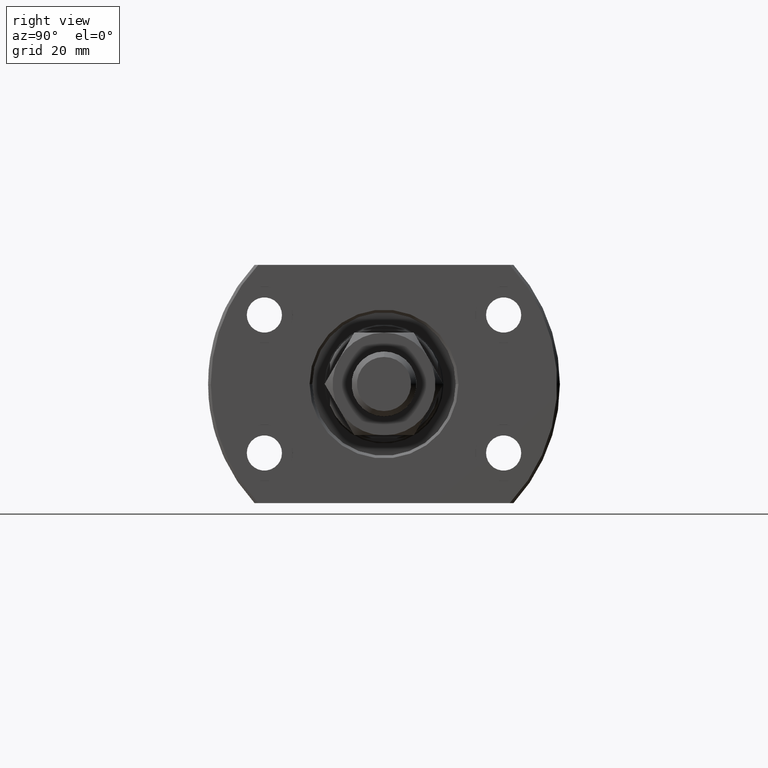
[diagram: clean part render]
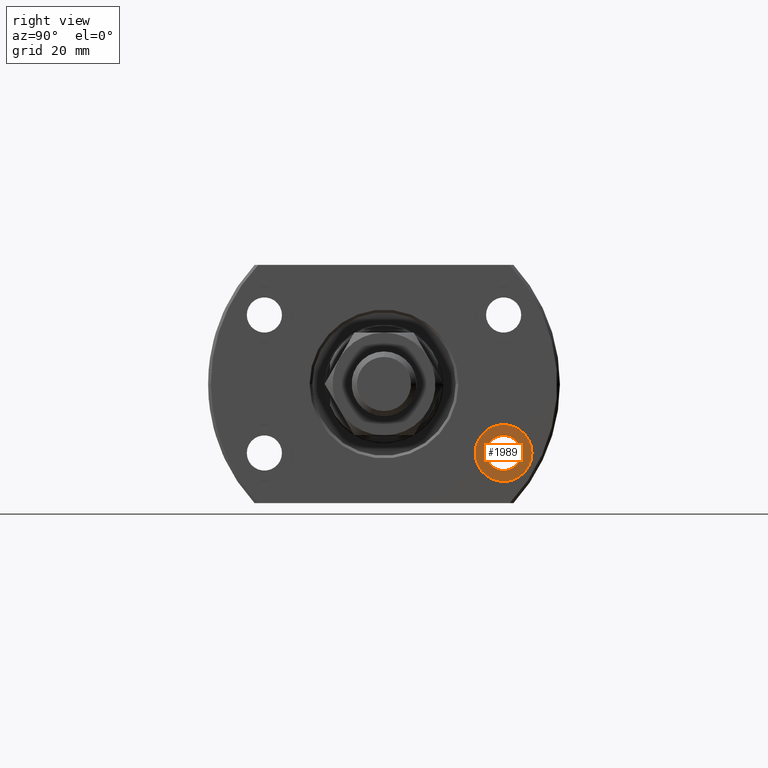
[diagram: same view with one face highlighted and labeled with its STEP entity id]
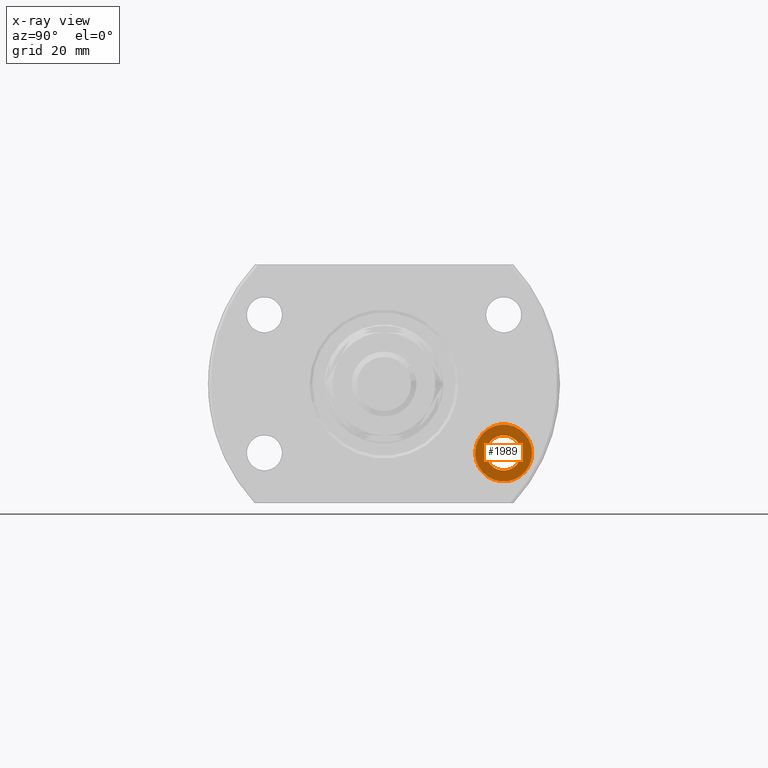
[diagram: x-ray of the same camera — body ghosted, the highlighted face saturated]
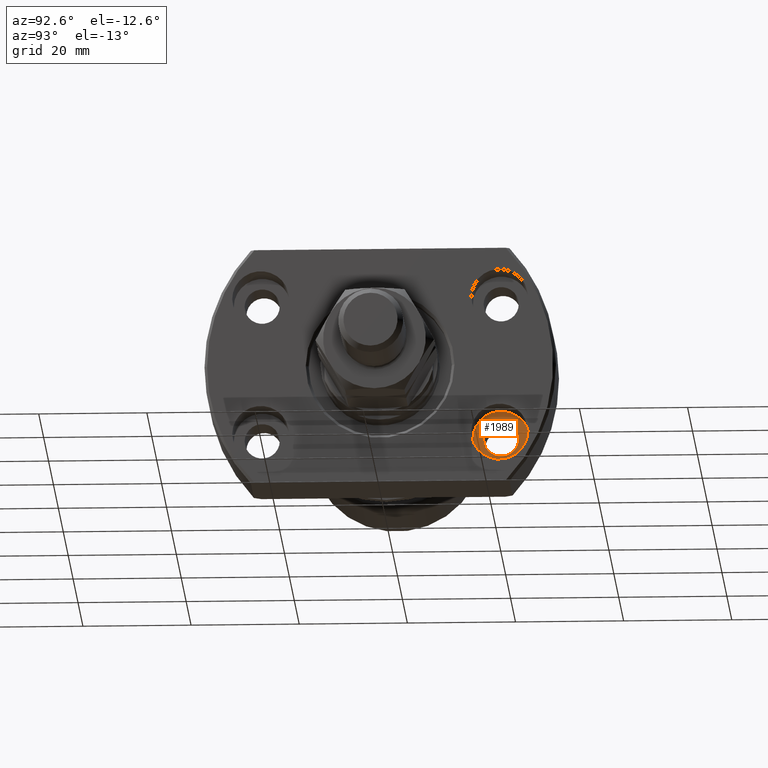
[diagram: same view with one face highlighted and labeled with its STEP entity id]
A machine part, right view. The second image highlights one B-rep face of the part: STEP entity #1989.
The next image is the same camera in x-ray: the body ghosted, the highlighted face saturated — about 0% of this face is hidden behind the body in this view.
A second angle (auxiliary view) of the same face is appended — the face is thin or edge-on in the first view.
In plain terms, the highlighted planar face has unit normal (1, -0, -0).
Its self-contained STEP definition (entity closure, byte-faithful):
#72 = VERTEX_POINT ( 'NONE', #3354 ) ;
#106 = CARTESIAN_POINT ( 'NONE',  ( 21.00000000000049027, 16.84999999999939746, -12.75000000000000178 ) ) ;
#198 = CARTESIAN_POINT ( 'NONE',  ( 21.00000000000064304, 22.09999999999939746, -12.75000000000000178 ) ) ;
#227 = DIRECTION ( 'NONE',  ( 2.882309775469156694E-14, 1.000000000000000000, 0.000000000000000000 ) ) ;
#276 = AXIS2_PLACEMENT_3D ( 'NONE', #4468, #1057, #1109 ) ;
#330 = EDGE_CURVE ( 'NONE', #3328, #4544, #3846, .T. ) ;
#506 = EDGE_CURVE ( 'NONE', #4544, #3328, #3538, .T. ) ;
#637 = CARTESIAN_POINT ( 'NONE',  ( 21.00000000000055067, 18.84999999999939746, -12.75000000000000178 ) ) ;
#1057 = DIRECTION ( 'NONE',  ( 1.000000000000000000, -2.887798767815668620E-14, -6.310887241768094443E-30 ) ) ;
#1109 = DIRECTION ( 'NONE',  ( 2.882309775469156694E-14, 1.000000000000000000, 0.000000000000000000 ) ) ;
#1336 = DIRECTION ( 'NONE',  ( 1.000000000000000000, -2.887798767815668620E-14, -6.310887241768094443E-30 ) ) ;
#1532 = ORIENTED_EDGE ( 'NONE', *, *, #506, .F. ) ;
#1610 = VERTEX_POINT ( 'NONE', #106 ) ;
#1687 = AXIS2_PLACEMENT_3D ( 'NONE', #4396, #4774, #3987 ) ;
#1688 = DIRECTION ( 'NONE',  ( 1.000000000000000000, -2.887798767815668620E-14, -6.310887241768094443E-30 ) ) ;
#1694 = AXIS2_PLACEMENT_3D ( 'NONE', #2040, #1336, #3140 ) ;
#1793 = ORIENTED_EDGE ( 'NONE', *, *, #2914, .T. ) ;
#1814 = ORIENTED_EDGE ( 'NONE', *, *, #2699, .T. ) ;
#1989 = ADVANCED_FACE ( 'NONE', ( #4056, #2579 ), #3964, .T. ) ;
#2040 = CARTESIAN_POINT ( 'NONE',  ( 21.00000000000064304, 22.09999999999939746, -12.75000000000000178 ) ) ;
#2078 = ORIENTED_EDGE ( 'NONE', *, *, #330, .F. ) ;
#2475 = CIRCLE ( 'NONE', #1694, 5.250000000000000888 ) ;
#2517 = CARTESIAN_POINT ( 'NONE',  ( 21.00000000000073541, 25.34999999999939746, -12.75000000000000178 ) ) ;
#2579 = FACE_OUTER_BOUND ( 'NONE', #3754, .T. ) ;
#2699 = EDGE_CURVE ( 'NONE', #72, #1610, #2475, .T. ) ;
#2914 = EDGE_CURVE ( 'NONE', #1610, #72, #3104, .T. ) ;
#3041 = CARTESIAN_POINT ( 'NONE',  ( 21.00000000000064304, 22.09999999999939746, -12.75000000000000178 ) ) ;
#3104 = CIRCLE ( 'NONE', #3945, 5.250000000000000888 ) ;
#3140 = DIRECTION ( 'NONE',  ( 2.907726969256361977E-14, 1.000000000000000000, 0.000000000000000000 ) ) ;
#3328 = VERTEX_POINT ( 'NONE', #2517 ) ;
#3354 = CARTESIAN_POINT ( 'NONE',  ( 21.00000000000079581, 27.34999999999939746, -12.75000000000000178 ) ) ;
#3467 = EDGE_LOOP ( 'NONE', ( #2078, #1532 ) ) ;
#3538 = CIRCLE ( 'NONE', #276, 3.249999999999999556 ) ;
#3754 = EDGE_LOOP ( 'NONE', ( #1814, #1793 ) ) ;
#3782 = DIRECTION ( 'NONE',  ( 1.000000000000000000, -2.887798767815668620E-14, -6.310887241768094443E-30 ) ) ;
#3846 = CIRCLE ( 'NONE', #4303, 3.249999999999999556 ) ;
#3945 = AXIS2_PLACEMENT_3D ( 'NONE', #3041, #3782, #4088 ) ;
#3964 = PLANE ( 'NONE',  #1687 ) ;
#3987 = DIRECTION ( 'NONE',  ( 2.887798767815668620E-14, 1.000000000000000000, 0.000000000000000000 ) ) ;
#4056 = FACE_BOUND ( 'NONE', #3467, .T. ) ;
#4088 = DIRECTION ( 'NONE',  ( 2.907726969256361977E-14, 1.000000000000000000, 0.000000000000000000 ) ) ;
#4303 = AXIS2_PLACEMENT_3D ( 'NONE', #198, #1688, #227 ) ;
#4396 = CARTESIAN_POINT ( 'NONE',  ( 21.00000000000000355, -6.065243638909961053E-13, -1.735493991486226196E-28 ) ) ;
#4468 = CARTESIAN_POINT ( 'NONE',  ( 21.00000000000064304, 22.09999999999939746, -12.75000000000000178 ) ) ;
#4544 = VERTEX_POINT ( 'NONE', #637 ) ;
#4774 = DIRECTION ( 'NONE',  ( 1.000000000000000000, -2.887798767815668620E-14, -6.310887241768094443E-30 ) ) ;